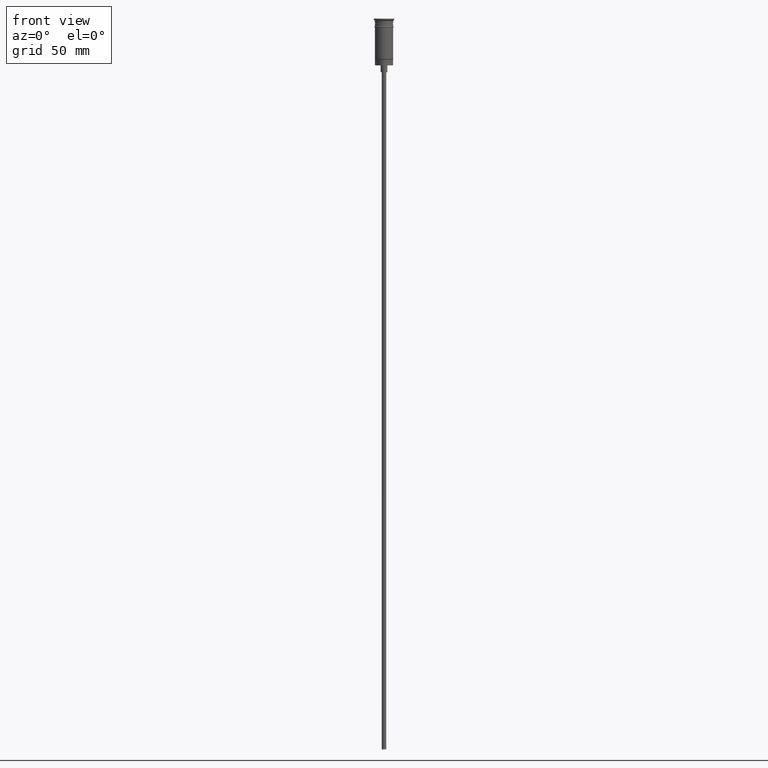
[diagram: clean part render]
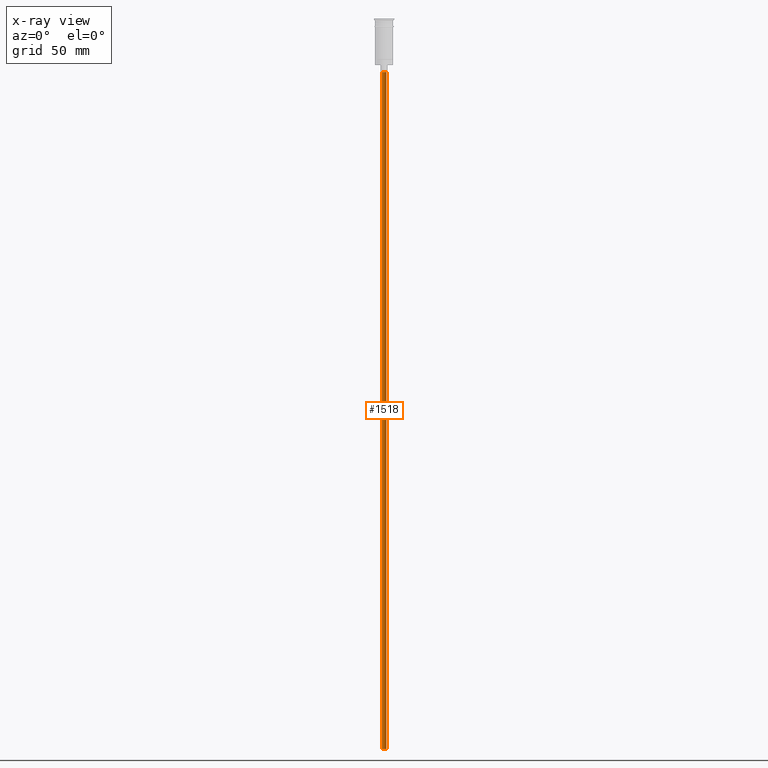
[diagram: x-ray — body ghosted, one internal face saturated and labeled with its STEP entity id]
A machine part, front view, then the same camera in x-ray: the body is ghosted and one INTERNAL B-rep face — a face not visible from any outside direction — is saturated and labeled: STEP entity #1518.
In plain terms, the highlighted cylindrical surface (edge-blend (fillet) strip) has radius 1 mm, axis along (-0, -0, 1).
Its self-contained STEP definition (entity closure, byte-faithful):
#46 = DIRECTION ( 'NONE',  ( -1.000000000000000000, 0.000000000000000000, 0.000000000000000000 ) ) ;
#90 = CARTESIAN_POINT ( 'NONE',  ( -0.9999999999999997780, 1.224646799147352961E-16, -320.5000000000000000 ) ) ;
#110 = VERTEX_POINT ( 'NONE', #1425 ) ;
#240 = DIRECTION ( 'NONE',  ( -0.000000000000000000, -0.000000000000000000, 1.000000000000000000 ) ) ;
#369 = FACE_OUTER_BOUND ( 'NONE', #838, .T. ) ;
#467 = ORIENTED_EDGE ( 'NONE', *, *, #1463, .F. ) ;
#474 = DIRECTION ( 'NONE',  ( -0.000000000000000000, -0.000000000000000000, 1.000000000000000000 ) ) ;
#559 = CIRCLE ( 'NONE', #1444, 0.9999999999999997780 ) ;
#598 = ORIENTED_EDGE ( 'NONE', *, *, #794, .F. ) ;
#639 = CARTESIAN_POINT ( 'NONE',  ( 0.000000000000000000, 0.000000000000000000, -23.49999999999999645 ) ) ;
#672 = CARTESIAN_POINT ( 'NONE',  ( -0.9999999999999997780, 1.224646799147352961E-16, -23.49999999999999645 ) ) ;
#710 = DIRECTION ( 'NONE',  ( -0.000000000000000000, -0.000000000000000000, 1.000000000000000000 ) ) ;
#714 = EDGE_CURVE ( 'NONE', #110, #866, #1448, .T. ) ;
#794 = EDGE_CURVE ( 'NONE', #110, #1287, #559, .T. ) ;
#838 = EDGE_LOOP ( 'NONE', ( #598, #1459, #872, #467 ) ) ;
#848 = CYLINDRICAL_SURFACE ( 'NONE', #1275, 0.9999999999999997780 ) ;
#864 = VECTOR ( 'NONE', #710, 1000.000000000000000 ) ;
#866 = VERTEX_POINT ( 'NONE', #672 ) ;
#872 = ORIENTED_EDGE ( 'NONE', *, *, #1307, .T. ) ;
#876 = CARTESIAN_POINT ( 'NONE',  ( 0.000000000000000000, 0.000000000000000000, -320.5000000000000000 ) ) ;
#896 = CARTESIAN_POINT ( 'NONE',  ( 0.9999999999999997780, 0.000000000000000000, -23.49999999999999645 ) ) ;
#936 = VECTOR ( 'NONE', #474, 1000.000000000000000 ) ;
#939 = AXIS2_PLACEMENT_3D ( 'NONE', #639, #1502, #46 ) ;
#984 = DIRECTION ( 'NONE',  ( 1.000000000000000000, 0.000000000000000000, 0.000000000000000000 ) ) ;
#991 = CARTESIAN_POINT ( 'NONE',  ( 0.9999999999999997780, 0.000000000000000000, -320.5000000000000000 ) ) ;
#1115 = LINE ( 'NONE', #991, #864 ) ;
#1139 = DIRECTION ( 'NONE',  ( 0.000000000000000000, 0.000000000000000000, -1.000000000000000000 ) ) ;
#1224 = CIRCLE ( 'NONE', #939, 0.9999999999999997780 ) ;
#1275 = AXIS2_PLACEMENT_3D ( 'NONE', #876, #240, #984 ) ;
#1287 = VERTEX_POINT ( 'NONE', #1393 ) ;
#1307 = EDGE_CURVE ( 'NONE', #866, #1332, #1224, .T. ) ;
#1332 = VERTEX_POINT ( 'NONE', #896 ) ;
#1393 = CARTESIAN_POINT ( 'NONE',  ( 0.9999999999999997780, 0.000000000000000000, -320.5000000000000000 ) ) ;
#1408 = CARTESIAN_POINT ( 'NONE',  ( 0.000000000000000000, 0.000000000000000000, -320.5000000000000000 ) ) ;
#1425 = CARTESIAN_POINT ( 'NONE',  ( -0.9999999999999997780, 1.224646799147352961E-16, -320.5000000000000000 ) ) ;
#1444 = AXIS2_PLACEMENT_3D ( 'NONE', #1408, #1139, #1544 ) ;
#1448 = LINE ( 'NONE', #90, #936 ) ;
#1459 = ORIENTED_EDGE ( 'NONE', *, *, #714, .T. ) ;
#1463 = EDGE_CURVE ( 'NONE', #1287, #1332, #1115, .T. ) ;
#1502 = DIRECTION ( 'NONE',  ( 0.000000000000000000, 0.000000000000000000, -1.000000000000000000 ) ) ;
#1518 = ADVANCED_FACE ( 'NONE', ( #369 ), #848, .T. ) ;
#1544 = DIRECTION ( 'NONE',  ( -1.000000000000000000, 0.000000000000000000, 0.000000000000000000 ) ) ;